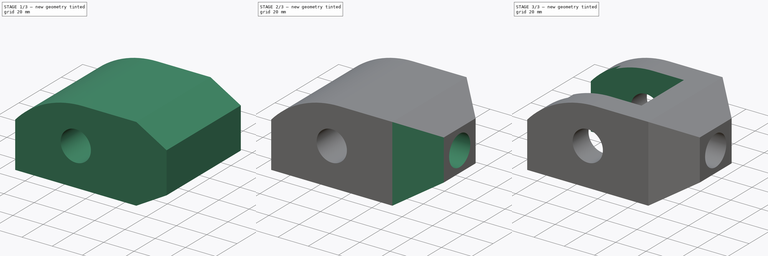
[diagram: build sequence overview — one tinted view per stage of 3, left to right]
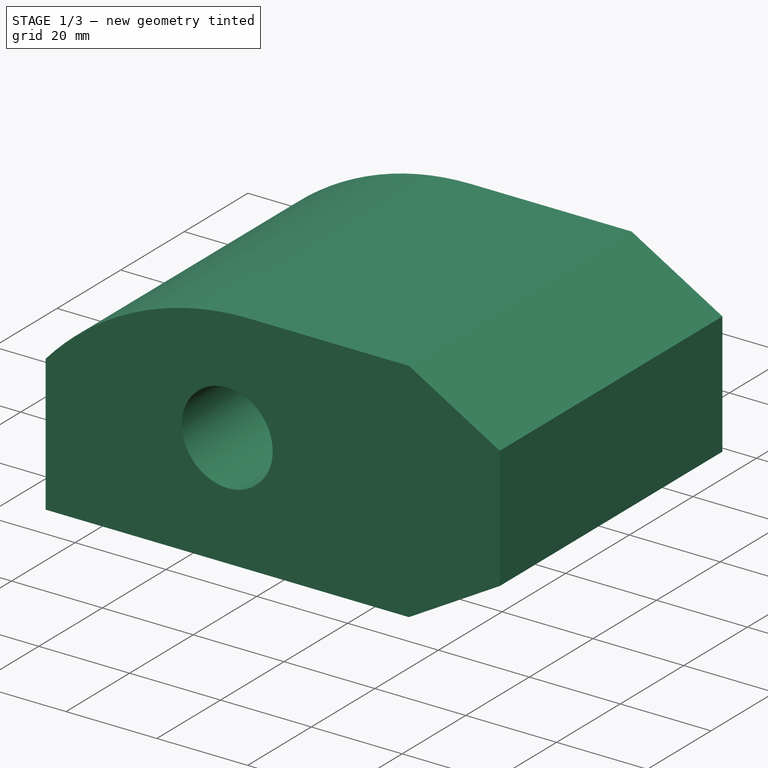
[diagram: stage 1 of 3 — iso view after this stage's code; geometry added in this stage tinted green]
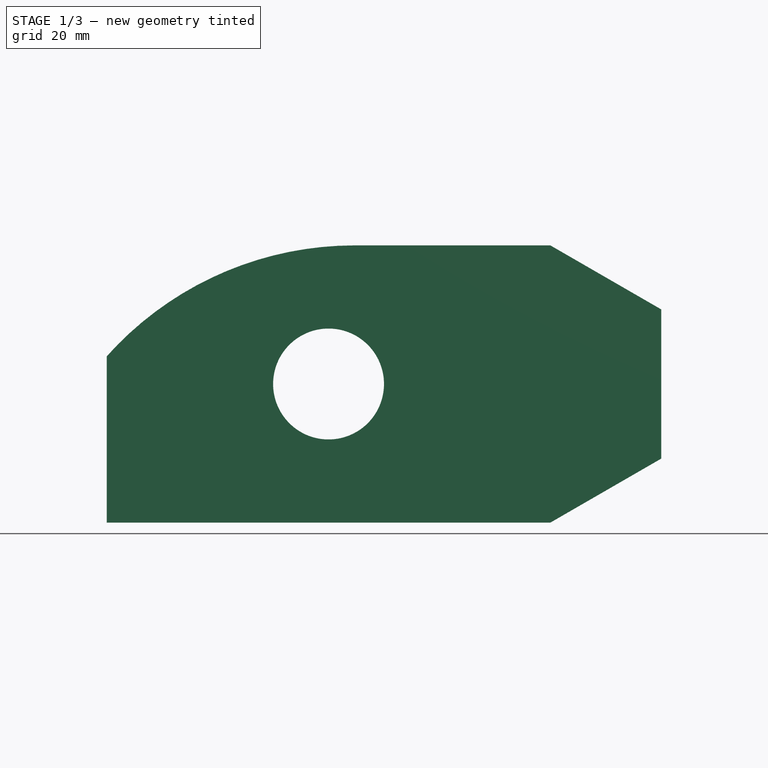
[diagram: stage 1 of 3 — front view after this stage's code; geometry added in this stage tinted green]
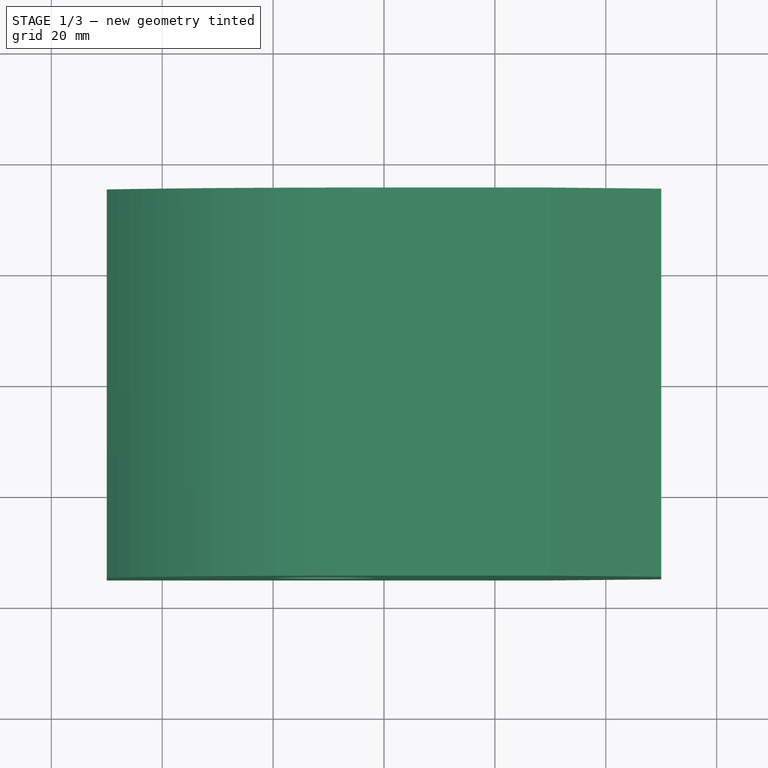
[diagram: stage 1 of 3 — top view after this stage's code; geometry added in this stage tinted green]
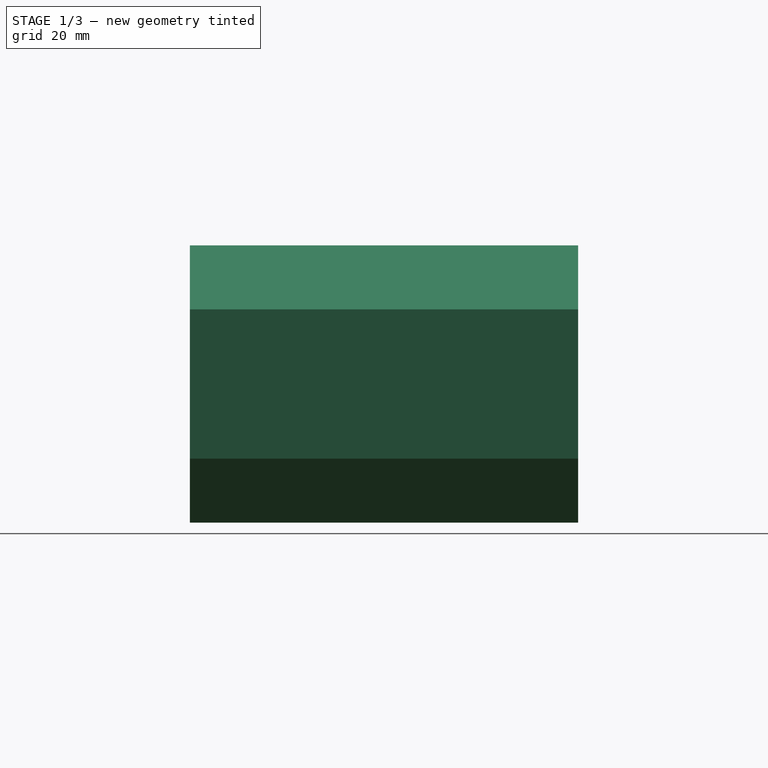
[diagram: stage 1 of 3 — right view after this stage's code; geometry added in this stage tinted green]
FCSTD DOCUMENT  (FreeCAD 0.16R)
Label: Ejer Final 33
License: All rights reserved
LicenseURL: http://en.wikipedia.org/wiki/All_rights_reserved
objects: Sketcher::SketchObject×5, PartDesign::Pocket×4, PartDesign::Chamfer×2, PartDesign::Pad×1
note: 17 computed .brp shape members not serialized (recipe doc carries the construction recipe); baked Part::Feature solids carry a one-line shape summary decoded from their .brp

FEATURE [Sketcher::SketchObject] Sketch
  Placement = pos=(0,0,0) rot=(-1,0,0;4.71239rad)
  sketch-geometry (6):
    g0: LineSegment StartX=50 StartY=50 StartZ=0 EndX=50 EndY=0 EndZ=0
    g1: LineSegment StartX=50 StartY=0 StartZ=0 EndX=-50 EndY=0 EndZ=0
    g2: LineSegment StartX=-50 StartY=0 StartZ=0 EndX=-50 EndY=30 EndZ=0
    g3: LineSegment StartX=50 StartY=50 StartZ=0 EndX=-5.27855 EndY=50 EndZ=0
    g4: ArcOfCircle CenterX=-5.27864 CenterY=-10 CenterZ=0 NormalX=0 NormalY=0 NormalZ=1 Radius=60 StartAngle=1.57079 EndAngle=2.41186
    g5: Circle CenterX=-10 CenterY=25 CenterZ=0 NormalX=0 NormalY=0 NormalZ=1 Radius=10
  constraints (20):
    c: Coincident(g0,g1)
    c: Coincident(g1,g2)
    c: Horizontal(g1)
    c: Vertical(g0)
    c: Vertical(g2)
    c: PointOnObject(g-1,g1)
    c: Symmetric(g1,g0,g-2)
    c: DistanceX(g1,g1) = 100
    c: DistanceY(g0,g0) = 50
    c: DistanceY(g2,g2) = 30
    c: Coincident(g3,g0)
    c: Horizontal(g3)
    c: Coincident(g4,g2)
    c: PointOnObject(g4,g3)
    c: Radius(g4) = 60
    c: Coincident(g3,g4)
    c: Tangent(g4,g3)
    c: Radius(g5) = 10
    c: DistanceY(g1,g5) = 25
    c: DistanceX(g1,g5) = 40
FEATURE [PartDesign::Pad] Pad
  Length = 70
  Length2 = 100
  Midplane = true
  Placement = pos=(0,0,0) rot=(-1,0,0;4.71239rad)
  Sketch = -> Sketch
  Type = 0
FEATURE [Sketcher::SketchObject] Sketch001
  ExternalGeometry = -> [Pad]
  Placement = pos=(0,-35,0) rot=(1,0,0;1.5708rad)
  Support = -> Pad [Face8]
  sketch-geometry (6):
    g0: LineSegment StartX=50 StartY=50 StartZ=0 EndX=30 EndY=50 EndZ=0
    g1: LineSegment StartX=50 StartY=0 StartZ=0 EndX=30 EndY=0 EndZ=0
    g2: LineSegment StartX=30 StartY=50 StartZ=0 EndX=50 EndY=38.453 EndZ=0
    g3: LineSegment StartX=50 StartY=38.453 StartZ=0 EndX=50 EndY=50 EndZ=0
    g4: LineSegment StartX=30 StartY=0 StartZ=0 EndX=50 EndY=11.547 EndZ=0
    g5: LineSegment StartX=50 StartY=11.547 StartZ=0 EndX=50 EndY=0 EndZ=0
  constraints (16):
    c: Horizontal(g0)
    c: Horizontal(g1)
    c: DistanceX(g1,g1) = 20
    c: DistanceX(g0,g0) = 20
    c: Coincident(g-3,g1)
    c: Coincident(g0,g-3)
    c: Coincident(g0,g2)
    c: PointOnObject(g2,g-3)
    c: Coincident(g2,g3)
    c: Coincident(g3,g0)
    c: Coincident(g1,g4)
    c: PointOnObject(g4,g-3)
    c: Coincident(g4,g5)
    c: Coincident(g5,g1)
    c: Angle(g1,g4) = 0.523599
    c: Angle(g2,g0) = 0.523599
FEATURE [PartDesign::Pocket] Pocket
  Length = 5
  Placement = pos=(0,0,0) rot=(-1,0,0;4.71239rad)
  Sketch = -> Sketch001
  Type = 1
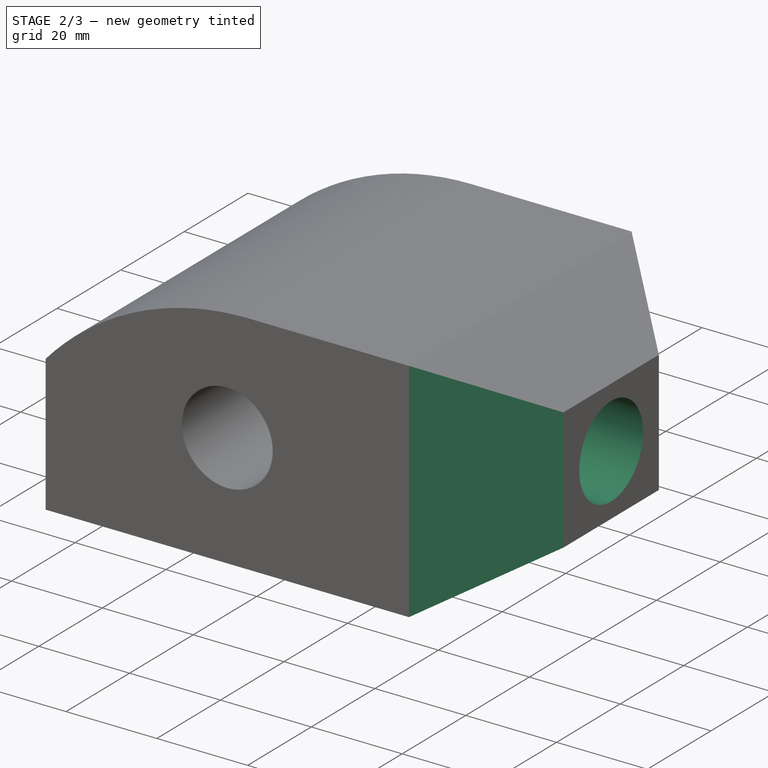
[diagram: stage 2 of 3 — iso view after this stage's code; geometry added in this stage tinted green]
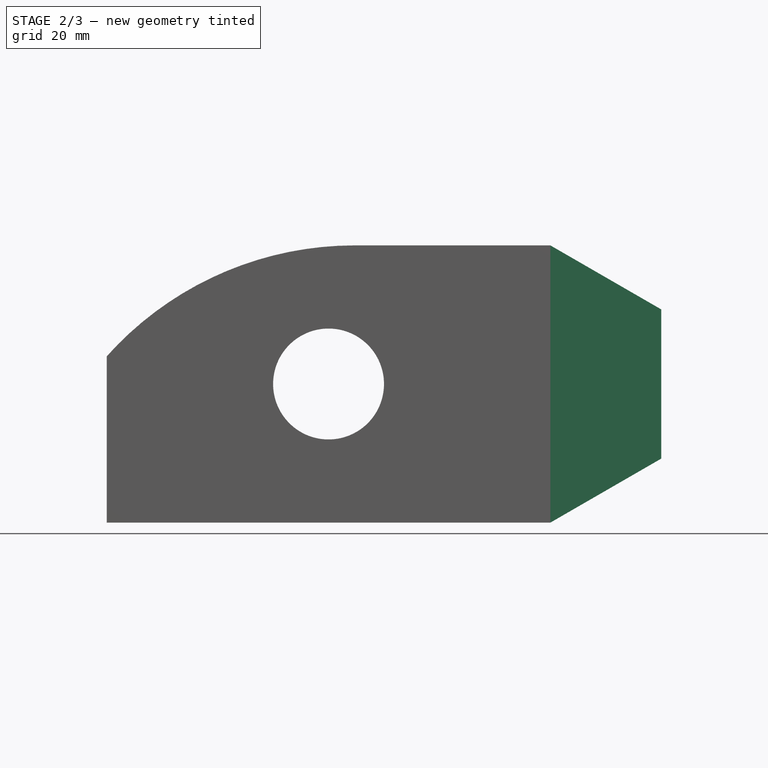
[diagram: stage 2 of 3 — front view after this stage's code; geometry added in this stage tinted green]
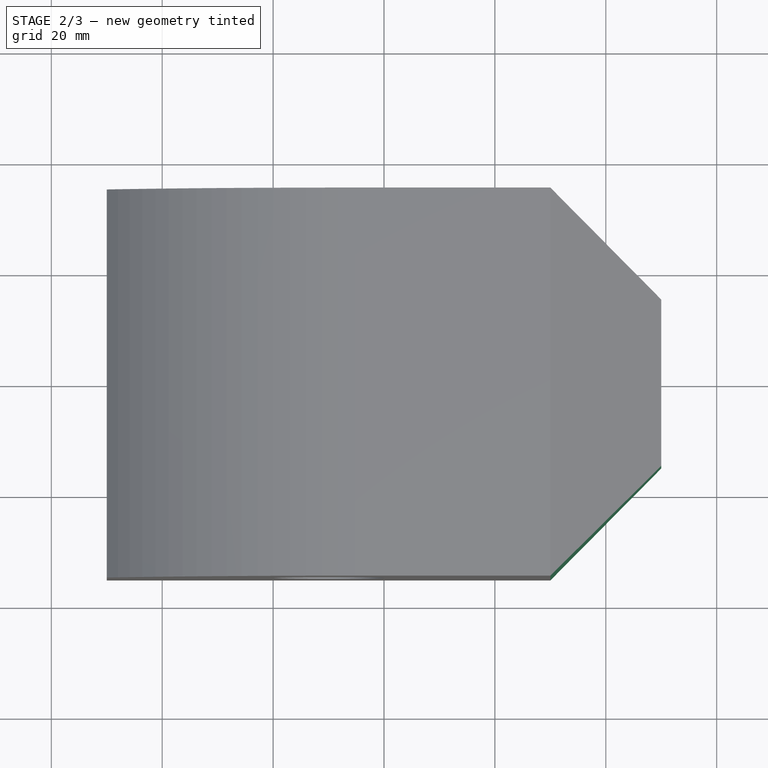
[diagram: stage 2 of 3 — top view after this stage's code; geometry added in this stage tinted green]
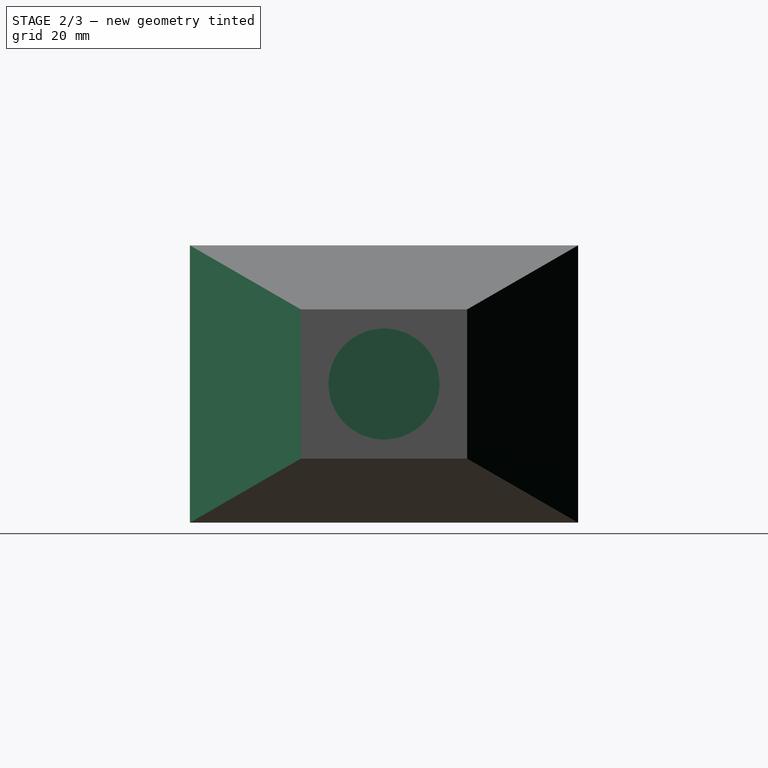
[diagram: stage 2 of 3 — right view after this stage's code; geometry added in this stage tinted green]
FEATURE [PartDesign::Chamfer] Chamfer
  Base = -> Pocket [Edge4]
  Placement = pos=(0,0,0) rot=(-1,0,0;4.71239rad)
  Size = 20
FEATURE [PartDesign::Chamfer] Chamfer001
  Base = -> Chamfer [Edge3]
  Placement = pos=(0,0,0) rot=(-1,0,0;4.71239rad)
  Size = 20
FEATURE [Sketcher::SketchObject] Sketch002
  Placement = pos=(50,0,0) rot=(0.707107,0,0.707107;3.14159rad)
  Support = -> Chamfer001 [Face1]
  sketch-geometry (1):
    g0: Circle CenterX=25 CenterY=0 CenterZ=0 NormalX=0 NormalY=0 NormalZ=1 Radius=10
  constraints (3):
    c: PointOnObject(g0,g-1)
    c: Radius(g0) = 10
    c: DistanceX(g-1,g0) = 25
FEATURE [PartDesign::Pocket] Pocket001
  Length = 15
  Placement = pos=(0,0,0) rot=(-1,0,0;4.71239rad)
  Sketch = -> Sketch002
  Type = 0
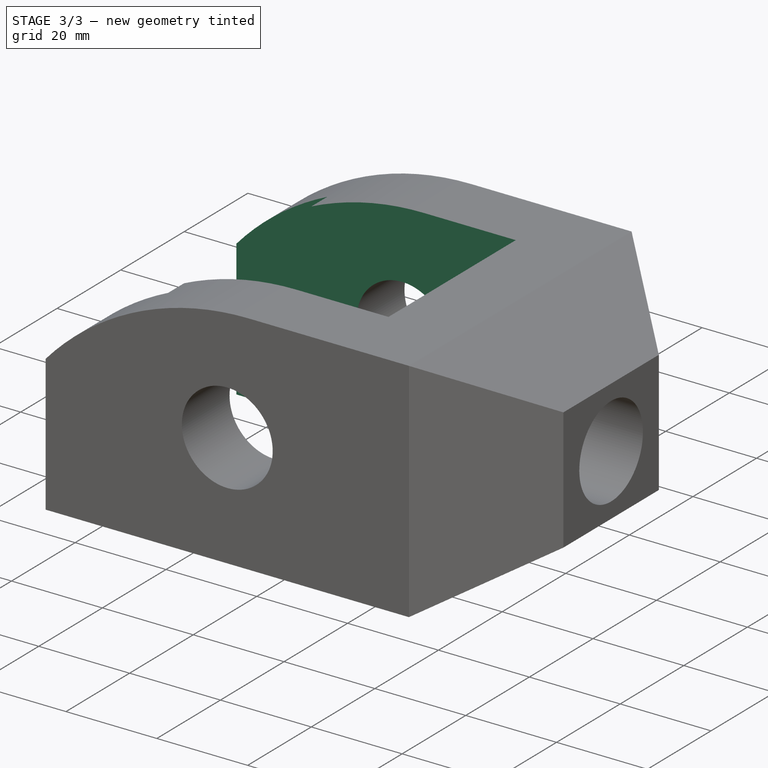
[diagram: stage 3 of 3 — iso view after this stage's code; geometry added in this stage tinted green]
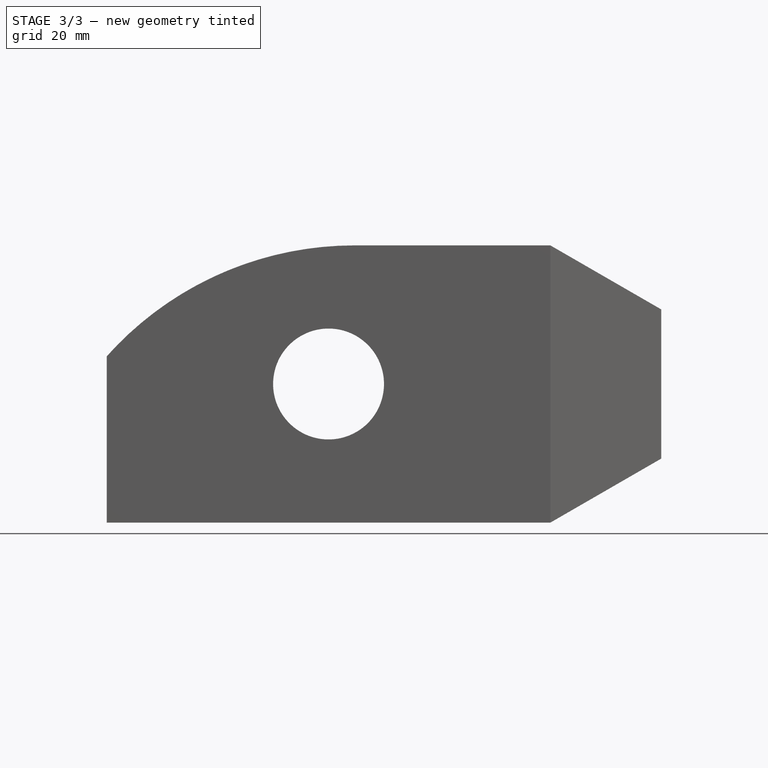
[diagram: stage 3 of 3 — front view after this stage's code; geometry added in this stage tinted green]
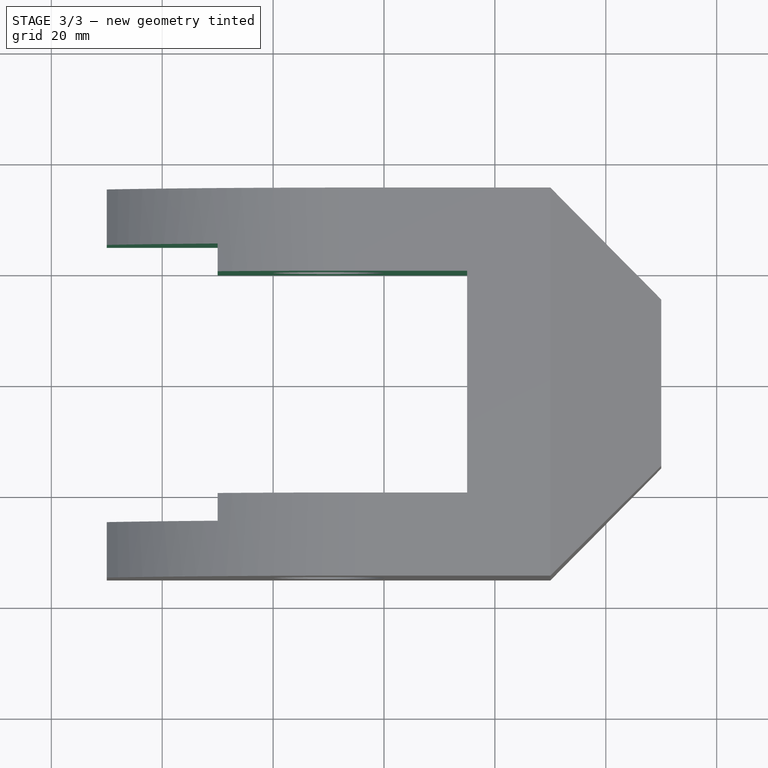
[diagram: stage 3 of 3 — top view after this stage's code; geometry added in this stage tinted green]
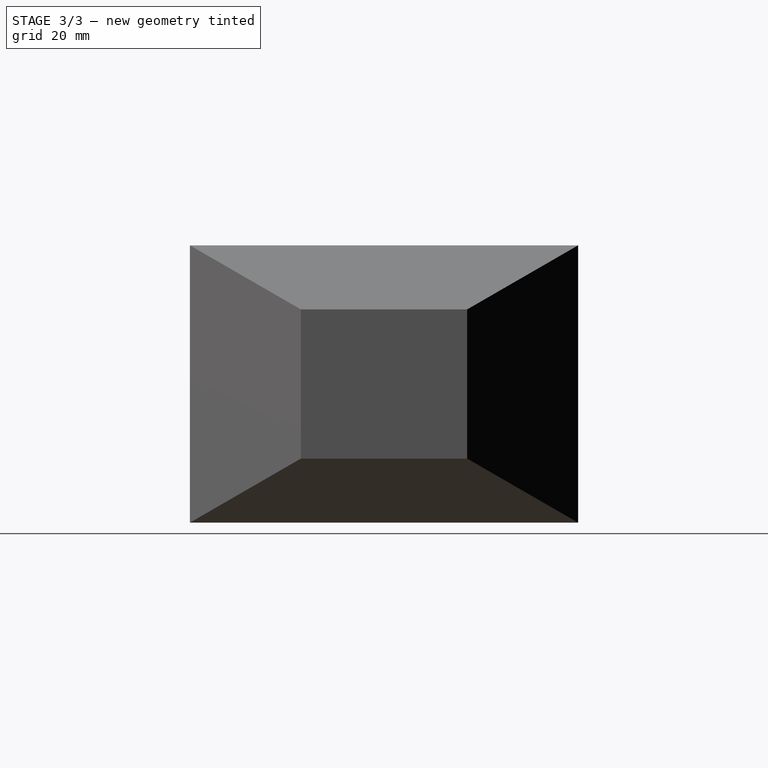
[diagram: stage 3 of 3 — right view after this stage's code; geometry added in this stage tinted green]
FEATURE [Sketcher::SketchObject] Sketch003
  Placement = pos=(-50,0,0) rot=(0.707107,0,-0.707107;3.14159rad)
  Support = -> Pocket001 [Face13]
  sketch-geometry (4):
    g0: LineSegment StartX=-66.4567 StartY=20 StartZ=0 EndX=14.81 EndY=20 EndZ=0
    g1: LineSegment StartX=14.81 StartY=20 StartZ=0 EndX=14.81 EndY=-20 EndZ=0
    g2: LineSegment StartX=14.81 StartY=-20 StartZ=0 EndX=-66.4567 EndY=-20 EndZ=0
    g3: LineSegment StartX=-66.4567 StartY=-20 StartZ=0 EndX=-66.4567 EndY=20 EndZ=0
  constraints (10):
    c: Coincident(g0,g1)
    c: Coincident(g1,g2)
    c: Coincident(g2,g3)
    c: Coincident(g3,g0)
    c: Horizontal(g0)
    c: Horizontal(g2)
    c: Vertical(g1)
    c: Vertical(g3)
    c: DistanceY(g1,g0) = 40
    c: Symmetric(g0,g1,g-1)
FEATURE [PartDesign::Pocket] Pocket002
  Length = 65
  Placement = pos=(0,0,0) rot=(-1,0,0;4.71239rad)
  Sketch = -> Sketch003
  Type = 0
FEATURE [Sketcher::SketchObject] Sketch004
  Placement = pos=(-50,0,0) rot=(0.707107,0,-0.707107;3.14159rad)
  Support = -> Pocket002 [Face19]
  sketch-geometry (4):
    g0: LineSegment StartX=-71.3633 StartY=25 StartZ=0 EndX=24.01 EndY=25 EndZ=0
    g1: LineSegment StartX=24.01 StartY=25 StartZ=0 EndX=24.01 EndY=-25 EndZ=0
    g2: LineSegment StartX=24.01 StartY=-25 StartZ=0 EndX=-71.3633 EndY=-25 EndZ=0
    g3: LineSegment StartX=-71.3633 StartY=-25 StartZ=0 EndX=-71.3633 EndY=25 EndZ=0
  constraints (10):
    c: Coincident(g0,g1)
    c: Coincident(g1,g2)
    c: Coincident(g2,g3)
    c: Coincident(g3,g0)
    c: Horizontal(g0)
    c: Horizontal(g2)
    c: Vertical(g1)
    c: Vertical(g3)
    c: DistanceY(g1,g1) = 50
    c: Symmetric(g0,g1,g-1)
FEATURE [PartDesign::Pocket] Pocket003
  Length = 20
  Placement = pos=(0,0,0) rot=(-1,0,0;4.71239rad)
  Sketch = -> Sketch004
  Type = 0
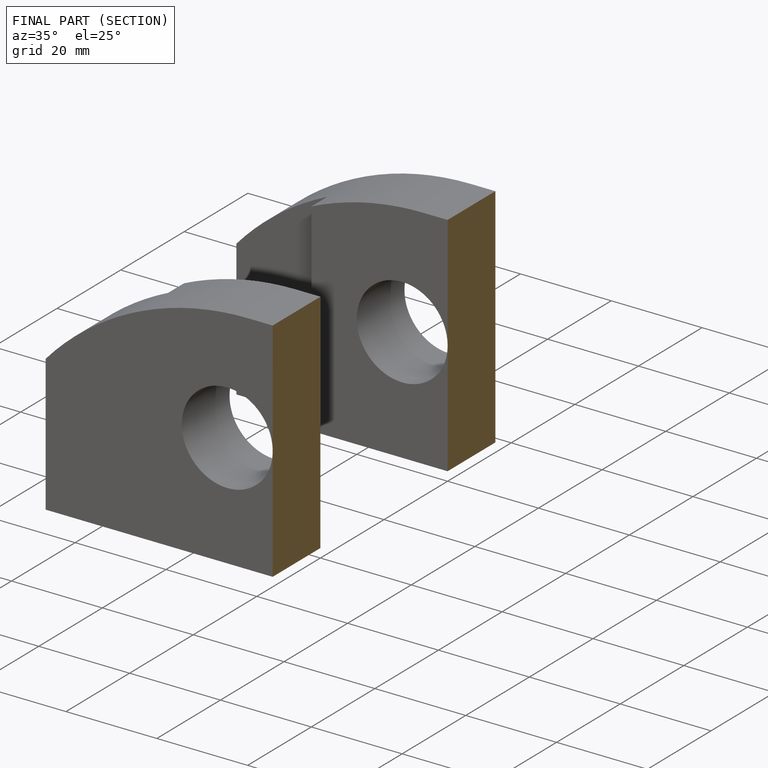
[diagram: finished part — half-section view (interior)]
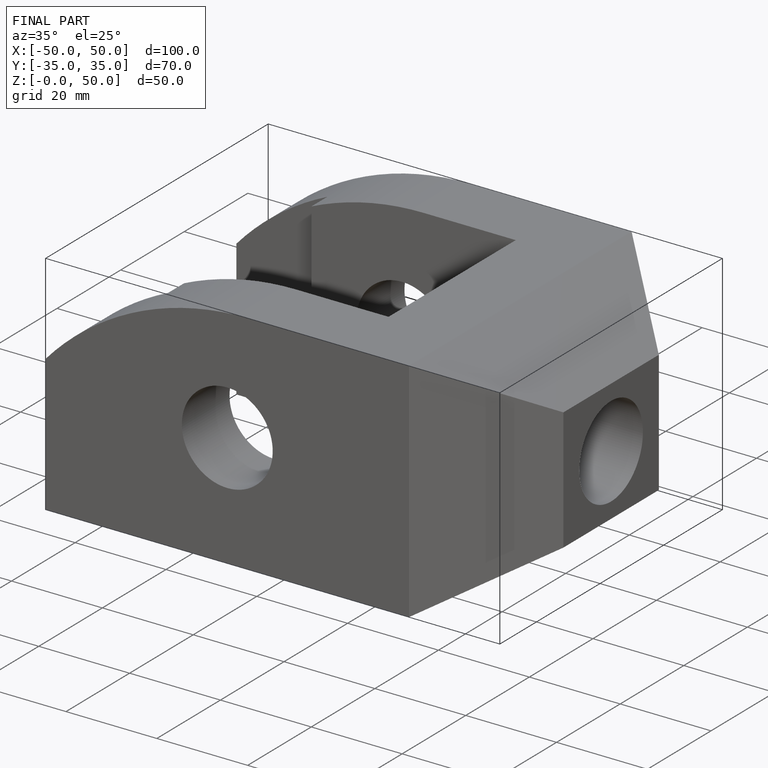
[diagram: finished part — iso view with bounding-box wireframe]
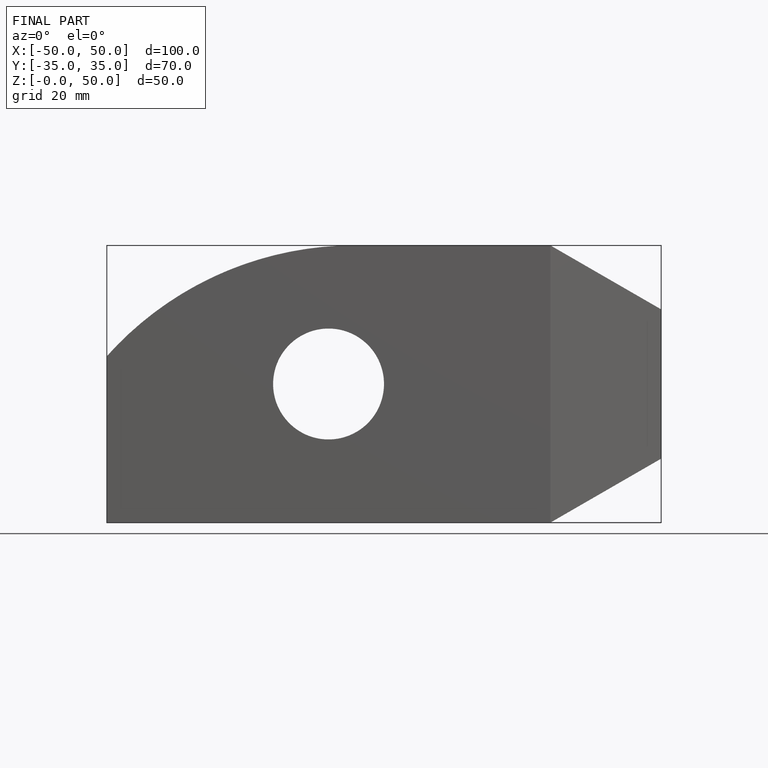
[diagram: finished part — front view with bounding-box wireframe]
